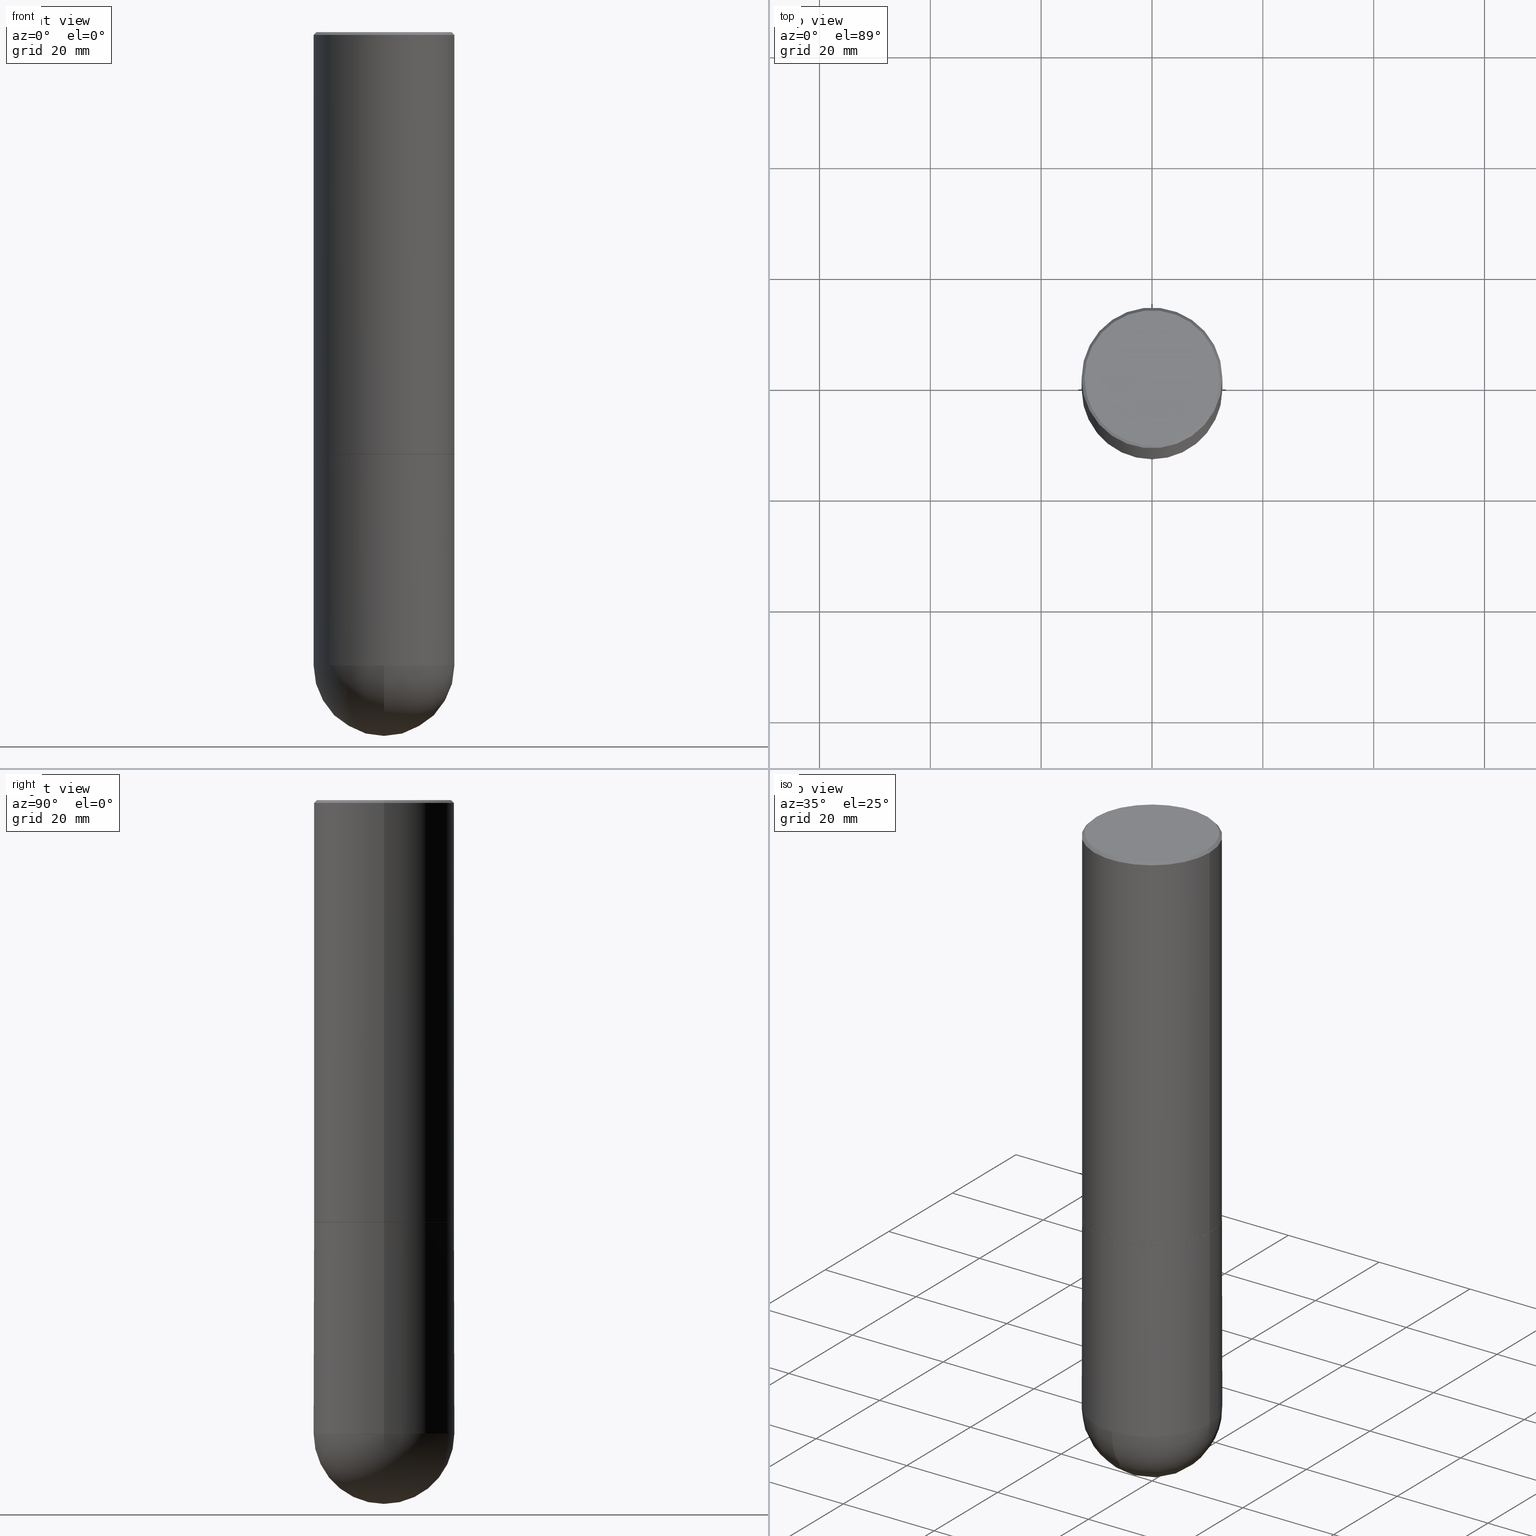
[diagram: canonical four-view strip — front | top / right | iso, engineering-drawing reading convention]
A machine part, canonical four-view strip (front | top / right | iso — engineering-drawing reading convention). The complete STEP part file that produces these views, byte-faithful:
ISO-10303-21;
HEADER;
FILE_DESCRIPTION (( 'STEP AP203' ),
    '1' );
FILE_NAME ('34989.STEP',
    '2024-02-21T18:46:01',
    ( '' ),
    ( '' ),
    'SwSTEP 2.0',
    'SolidWorks 2023',
    '' );
FILE_SCHEMA (( 'CONFIG_CONTROL_DESIGN' ));
ENDSEC;

DATA;
#1 = CYLINDRICAL_SURFACE ( 'NONE', #178, 0.5000000000000000000 ) ;
#2 = DIRECTION ( 'NONE',  ( 1.000000000000000000, -6.982962677686267499E-15, 4.876176775795935793E-29 ) ) ;
#3 = AXIS2_PLACEMENT_3D ( 'NONE', #346, #380, #406 ) ;
#4 = AXIS2_PLACEMENT_3D ( 'NONE', #295, #390, #399 ) ;
#5 = CARTESIAN_POINT ( 'NONE',  ( 3.491481338843242218E-15, 0.4999999999999841238, -4.500000000000001776 ) ) ;
#6 = CC_DESIGN_PERSON_AND_ORGANIZATION_ASSIGNMENT ( #180, #403, ( #360 ) ) ;
#7 = DIRECTION ( 'NONE',  ( 6.982962677686266711E-15, 1.000000000000000000, 0.000000000000000000 ) ) ;
#8 = DIRECTION ( 'NONE',  ( 1.000000000000000000, -6.982962677686265922E-15, 4.883557194083112340E-29 ) ) ;
#9 = CIRCLE ( 'NONE', #75, 0.5000000000000000000 ) ;
#10 = ADVANCED_FACE ( 'NONE', ( #158 ), #153, .F. ) ;
#11 = ORIENTED_EDGE ( 'NONE', *, *, #143, .T. ) ;
#12 = DIRECTION ( 'NONE',  ( -2.445468806185136877E-29, 3.491481338843145188E-15, 1.000000000000000000 ) ) ;
#13 = EDGE_LOOP ( 'NONE', ( #173, #225, #142, #15 ) ) ;
#14 = CARTESIAN_POINT ( 'NONE',  ( 4.890937612370299433E-31, -6.982962677686328587E-17, -0.02000000000000010797 ) ) ;
#15 = ORIENTED_EDGE ( 'NONE', *, *, #93, .F. ) ;
#16 = FACE_OUTER_BOUND ( 'NONE', #294, .T. ) ;
#17 = CONICAL_SURFACE ( 'NONE', #135, 0.5000000000000000000, 0.7853981633974459475 ) ;
#18 = CC_DESIGN_APPROVAL ( #329, ( #360 ) ) ;
#19 = EDGE_LOOP ( 'NONE', ( #247, #112, #84, #47 ) ) ;
#20 = VERTEX_POINT ( 'NONE', #243 ) ;
#21 = SHAPE_DEFINITION_REPRESENTATION ( #35, #96 ) ;
#22 = DIRECTION ( 'NONE',  ( -1.000000000000000000, 6.982962677686265922E-15, -4.876176775795935793E-29 ) ) ;
#23 = EDGE_CURVE ( 'NONE', #298, #177, #325, .T. ) ;
#24 = DIRECTION ( 'NONE',  ( -1.000000000000000000, 6.982962677686266711E-15, 0.000000000000000000 ) ) ;
#25 = VECTOR ( 'NONE', #66, 39.37007874015748143 ) ;
#26 = ADVANCED_FACE ( 'NONE', ( #65 ), #310, .T. ) ;
#27 = CIRCLE ( 'NONE', #55, 0.4989999999999999991 ) ;
#28 = DATE_TIME_ROLE ( 'classification_date' ) ;
#29 = SECURITY_CLASSIFICATION_LEVEL ( 'unclassified' ) ;
#30 = CARTESIAN_POINT ( 'NONE',  ( -0.4989999999999999991, -6.923537310738314819E-15, -3.000000000000000444 ) ) ;
#31 = CARTESIAN_POINT ( 'NONE',  ( 3.351822085289410309E-15, 0.4800000000000003708, -1.857322823473978811E-15 ) ) ;
#32 = CONICAL_SURFACE ( 'NONE', #128, 0.4989999999999999991, 0.7853981633976873100 ) ;
#33 = CONICAL_SURFACE ( 'NONE', #314, 0.5000000000000000000, 0.7853981633974459475 ) ;
#34 = CARTESIAN_POINT ( 'NONE',  ( 1.067348984991922956E-28, -1.618584839293420562E-14, -4.500000000000000000 ) ) ;
#35 = PRODUCT_DEFINITION_SHAPE ( 'NONE', 'NONE',  #360 ) ;
#36 = CARTESIAN_POINT ( 'NONE',  ( 7.336406418555409790E-29, -1.047444401652943635E-14, -3.000000000000000444 ) ) ;
#37 = DIRECTION ( 'NONE',  ( 1.000000000000000000, -6.982962677686266711E-15, 0.000000000000000000 ) ) ;
#38 = EDGE_CURVE ( 'NONE', #151, #20, #412, .T. ) ;
#39 = AXIS2_PLACEMENT_3D ( 'NONE', #385, #42, #221 ) ;
#40 = AXIS2_PLACEMENT_3D ( 'NONE', #341, #308, #43 ) ;
#41 = LOCAL_TIME ( 13, 46, 1.000000000000000000, #276 ) ;
#42 = DIRECTION ( 'NONE',  ( -2.445468806185136597E-29, 3.491481338843145583E-15, 1.000000000000000000 ) ) ;
#43 = DIRECTION ( 'NONE',  ( 1.000000000000000000, -6.982962677686266711E-15, 0.000000000000000000 ) ) ;
#44 = DIRECTION ( 'NONE',  ( 1.000000000000000000, 0.000000000000000000, 0.000000000000000000 ) ) ;
#45 = PERSON_AND_ORGANIZATION ( #350, #349 ) ;
#46 = LOCAL_TIME ( 13, 46, 1.000000000000000000, #100 ) ;
#47 = ORIENTED_EDGE ( 'NONE', *, *, #265, .F. ) ;
#48 = ORIENTED_EDGE ( 'NONE', *, *, #241, .F. ) ;
#49 = VERTEX_POINT ( 'NONE', #30 ) ;
#50 = ADVANCED_FACE ( 'NONE', ( #409 ), #32, .T. ) ;
#51 = DIRECTION ( 'NONE',  ( -0.7071067811865459074, 2.468850131082239706E-15, -0.7071067811865492381 ) ) ;
#52 = ORIENTED_EDGE ( 'NONE', *, *, #146, .T. ) ;
#53 = ADVANCED_FACE ( 'NONE', ( #130 ), #339, .T. ) ;
#54 = CLOSED_SHELL ( 'NONE', ( #215, #311, #271, #77, #126, #50, #72, #10 ) ) ;
#55 = AXIS2_PLACEMENT_3D ( 'NONE', #322, #284, #166 ) ;
#56 = ORIENTED_EDGE ( 'NONE', *, *, #348, .T. ) ;
#57 = CALENDAR_DATE ( 2024, 21, 2 ) ;
#58 = APPROVAL_STATUS ( 'not_yet_approved' ) ;
#59 = CC_DESIGN_PERSON_AND_ORGANIZATION_ASSIGNMENT ( #306, #94, ( #272 ) ) ;
#60 = DIRECTION ( 'NONE',  ( 2.445468806185136597E-29, -3.491481338843145583E-15, -1.000000000000000000 ) ) ;
#61 = APPROVAL_ROLE ( '' ) ;
#62 = VECTOR ( 'NONE', #210, 39.37007874015748143 ) ;
#63 = APPROVAL_STATUS ( 'not_yet_approved' ) ;
#64 = FACE_OUTER_BOUND ( 'NONE', #334, .T. ) ;
#65 = FACE_OUTER_BOUND ( 'NONE', #19, .T. ) ;
#66 = DIRECTION ( 'NONE',  ( -2.445468806185136877E-29, 3.491481338843145188E-15, 1.000000000000000000 ) ) ;
#67 = CIRCLE ( 'NONE', #98, 0.5000000000000002220 ) ;
#68 = LOCAL_TIME ( 13, 46, 1.000000000000000000, #244 ) ;
#69 = CARTESIAN_POINT ( 'NONE',  ( 7.333960949749226429E-29, -1.047095253519059492E-14, -2.999000000000000554 ) ) ;
#70 = EDGE_CURVE ( 'NONE', #20, #152, #313, .T. ) ;
#71 = CARTESIAN_POINT ( 'NONE',  ( 0.5000000000000002220, -1.396243387403372986E-14, -2.999000000000000554 ) ) ;
#72 = ADVANCED_FACE ( 'NONE', ( #64 ), #305, .F. ) ;
#73 = CARTESIAN_POINT ( 'NONE',  ( 0.5000000000000000000, -1.658453635950493077E-14, -4.500000000000000000 ) ) ;
#74 = AXIS2_PLACEMENT_3D ( 'NONE', #224, #103, #2 ) ;
#75 = AXIS2_PLACEMENT_3D ( 'NONE', #352, #253, #254 ) ;
#76 = FACE_OUTER_BOUND ( 'NONE', #278, .T. ) ;
#77 = ADVANCED_FACE ( 'NONE', ( #101 ), #17, .T. ) ;
#78 = DIRECTION ( 'NONE',  ( 1.000000000000000000, -6.982962677686266711E-15, 0.000000000000000000 ) ) ;
#79 = DIRECTION ( 'NONE',  ( -2.445468806185136597E-29, 3.491481338843145583E-15, 1.000000000000000000 ) ) ;
#80 = VERTEX_POINT ( 'NONE', #154 ) ;
#81 = CARTESIAN_POINT ( 'NONE',  ( -3.552713678800393250E-15, -0.5000000000000160982, -4.499999999999998224 ) ) ;
#82 = AXIS2_PLACEMENT_3D ( 'NONE', #216, #193, #188 ) ;
#83 = EDGE_CURVE ( 'NONE', #266, #296, #236, .T. ) ;
#84 = ORIENTED_EDGE ( 'NONE', *, *, #407, .F. ) ;
#85 = ORIENTED_EDGE ( 'NONE', *, *, #146, .F. ) ;
#86 = EDGE_CURVE ( 'NONE', #49, #151, #102, .T. ) ;
#87 = EDGE_LOOP ( 'NONE', ( #114, #202, #195, #362, #358 ) ) ;
#88 = FACE_OUTER_BOUND ( 'NONE', #226, .T. ) ;
#89 = ORIENTED_EDGE ( 'NONE', *, *, #345, .T. ) ;
#90 = APPROVAL_STATUS ( 'not_yet_approved' ) ;
#91 = AXIS2_PLACEMENT_3D ( 'NONE', #269, #246, #213 ) ;
#92 = ORIENTED_EDGE ( 'NONE', *, *, #387, .T. ) ;
#93 = EDGE_CURVE ( 'NONE', #80, #270, #373, .T. ) ;
#94 = PERSON_AND_ORGANIZATION_ROLE ( 'design_supplier' ) ;
#95 = DIRECTION ( 'NONE',  ( 1.000000000000000000, -6.982962677686265922E-15, 4.876176775795935793E-29 ) ) ;
#96 = ADVANCED_BREP_SHAPE_REPRESENTATION ( '34989', ( #108, #230, #104 ), #369 ) ;
#97 = CARTESIAN_POINT ( 'NONE',  ( 0.4989999999999999991, -1.395894239269488369E-14, -3.000000000000000444 ) ) ;
#98 = AXIS2_PLACEMENT_3D ( 'NONE', #34, #8, #7 ) ;
#99 = CONICAL_SURFACE ( 'NONE', #361, 0.4989999999999999991, 0.7853981633976873100 ) ;
#100 = COORDINATED_UNIVERSAL_TIME_OFFSET ( 5, 0, .BEHIND. ) ;
#101 = FACE_OUTER_BOUND ( 'NONE', #268, .T. ) ;
#102 = LINE ( 'NONE', #159, #182 ) ;
#103 = DIRECTION ( 'NONE',  ( -2.445468806185136597E-29, 3.491481338843145583E-15, 1.000000000000000000 ) ) ;
#104 = AXIS2_PLACEMENT_3D ( 'NONE', #393, #359, #44 ) ;
#105 = EDGE_CURVE ( 'NONE', #296, #179, #191, .T. ) ;
#106 = CYLINDRICAL_SURFACE ( 'NONE', #129, 0.5000000000000000000 ) ;
#107 = DIRECTION ( 'NONE',  ( 0.7071067811865459074, -7.319954787623251312E-15, -0.7071067811865492381 ) ) ;
#108 = MANIFOLD_SOLID_BREP ( 'Body-Move/Copy2[1]', #212 ) ;
#109 = CYLINDRICAL_SURFACE ( 'NONE', #74, 0.5000000000000001110 ) ;
#110 = CARTESIAN_POINT ( 'NONE',  ( 0.5000000000000000000, -3.500078625662629079E-15, -0.02000000000000010797 ) ) ;
#111 =( NAMED_UNIT ( * ) PLANE_ANGLE_UNIT ( ) SI_UNIT ( $, .RADIAN. ) );
#112 = ORIENTED_EDGE ( 'NONE', *, *, #83, .T. ) ;
#113 = EDGE_CURVE ( 'NONE', #177, #298, #262, .T. ) ;
#114 = ORIENTED_EDGE ( 'NONE', *, *, #192, .F. ) ;
#115 = CARTESIAN_POINT ( 'NONE',  ( -0.5000000000000000000, 3.421651712066270057E-15, -0.02000000000000010797 ) ) ;
#116 = AXIS2_PLACEMENT_3D ( 'NONE', #139, #134, #37 ) ;
#117 = ORIENTED_EDGE ( 'NONE', *, *, #387, .F. ) ;
#118 = LINE ( 'NONE', #170, #342 ) ;
#119 = EDGE_LOOP ( 'NONE', ( #366, #391, #207, #175 ) ) ;
#120 = LENGTH_MEASURE_WITH_UNIT ( LENGTH_MEASURE( 0.02539999999999999897 ), #257 );
#121 = EDGE_LOOP ( 'NONE', ( #394, #124 ) ) ;
#122 = APPROVAL_ROLE ( '' ) ;
#123 = APPROVAL_DATE_TIME ( #336, #299 ) ;
#124 = ORIENTED_EDGE ( 'NONE', *, *, #23, .T. ) ;
#125 = PERSON_AND_ORGANIZATION_ROLE ( 'creator' ) ;
#126 = ADVANCED_FACE ( 'NONE', ( #316 ), #109, .T. ) ;
#127 = DIRECTION ( 'NONE',  ( 6.982962677686265922E-15, 1.000000000000000000, -3.278217592397114284E-15 ) ) ;
#128 = AXIS2_PLACEMENT_3D ( 'NONE', #186, #375, #239 ) ;
#129 = AXIS2_PLACEMENT_3D ( 'NONE', #356, #388, #219 ) ;
#130 = FACE_OUTER_BOUND ( 'NONE', #119, .T. ) ;
#131 = UNCERTAINTY_MEASURE_WITH_UNIT (LENGTH_MEASURE( 1.000000000000000082E-05 ), #228, 'distance_accuracy_value', 'NONE');
#132 = LINE ( 'NONE', #110, #293 ) ;
#133 = CC_DESIGN_PERSON_AND_ORGANIZATION_ASSIGNMENT ( #273, #125, ( #272 ) ) ;
#134 = DIRECTION ( 'NONE',  ( -2.445468806185136597E-29, 3.491481338843145583E-15, 1.000000000000000000 ) ) ;
#135 = AXIS2_PLACEMENT_3D ( 'NONE', #185, #60, #24 ) ;
#136 = AXIS2_PLACEMENT_3D ( 'NONE', #14, #176, #78 ) ;
#137 = CARTESIAN_POINT ( 'NONE',  ( 7.336406418555409790E-29, -1.047444401652943635E-14, -3.000000000000000444 ) ) ;
#138 = DIRECTION ( 'NONE',  ( 1.000000000000000000, -6.982962677686266711E-15, 4.876176775795935793E-29 ) ) ;
#139 = CARTESIAN_POINT ( 'NONE',  ( 7.336406418555409790E-29, -1.047444401652943635E-14, -3.000000000000000444 ) ) ;
#140 = AXIS2_PLACEMENT_3D ( 'NONE', #174, #79, #365 ) ;
#141 = DIRECTION ( 'NONE',  ( -1.000000000000000000, 6.982962677686265922E-15, -4.876176775795935793E-29 ) ) ;
#142 = ORIENTED_EDGE ( 'NONE', *, *, #171, .F. ) ;
#143 = EDGE_CURVE ( 'NONE', #179, #145, #376, .T. ) ;
#144 = CARTESIAN_POINT ( 'NONE',  ( 0.5000000000000000000, -1.396592535537257129E-14, -3.000000000000000444 ) ) ;
#145 = VERTEX_POINT ( 'NONE', #5 ) ;
#146 = EDGE_CURVE ( 'NONE', #298, #152, #132, .T. ) ;
#147 = ORIENTED_EDGE ( 'NONE', *, *, #222, .F. ) ;
#148 = AXIS2_PLACEMENT_3D ( 'NONE', #351, #353, #187 ) ;
#149 = CARTESIAN_POINT ( 'NONE',  ( 0.4800000000000003708, -3.396558832296484071E-15, -3.628235616585113699E-16 ) ) ;
#150 = CC_DESIGN_SECURITY_CLASSIFICATION ( #396, ( #272 ) ) ;
#151 = VERTEX_POINT ( 'NONE', #248 ) ;
#152 = VERTEX_POINT ( 'NONE', #160 ) ;
#153 = PLANE ( 'NONE',  #405 ) ;
#154 = CARTESIAN_POINT ( 'NONE',  ( 0.4989999999999999991, -1.395894239269488369E-14, -3.000000000000000444 ) ) ;
#155 = APPROVAL_PERSON_ORGANIZATION ( #378, #299, #61 ) ;
#156 = EDGE_CURVE ( 'NONE', #80, #49, #27, .T. ) ;
#157 = DATE_AND_TIME ( #367, #46 ) ;
#158 = FACE_OUTER_BOUND ( 'NONE', #121, .T. ) ;
#159 = CARTESIAN_POINT ( 'NONE',  ( -0.4989999999999999991, -6.928835765086536432E-15, -3.000000000000000444 ) ) ;
#160 = CARTESIAN_POINT ( 'NONE',  ( 0.5000000000000000000, -3.500078625662629079E-15, -0.02000000000000010797 ) ) ;
#161 = FACE_OUTER_BOUND ( 'NONE', #87, .T. ) ;
#162 = DIRECTION ( 'NONE',  ( -2.445468806185136597E-29, 3.491481338843145583E-15, 1.000000000000000000 ) ) ;
#163 = CIRCLE ( 'NONE', #136, 0.5000000000000000000 ) ;
#164 = DIRECTION ( 'NONE',  ( -2.445468806185136877E-29, 3.491481338843145188E-15, 1.000000000000000000 ) ) ;
#165 = CC_DESIGN_DATE_AND_TIME_ASSIGNMENT ( #157, #279, ( #360 ) ) ;
#166 = DIRECTION ( 'NONE',  ( 1.000000000000000000, -6.982962677686265133E-15, 0.000000000000000000 ) ) ;
#167 = APPLICATION_PROTOCOL_DEFINITION ( 'international standard', 'config_control_design', 1994, #398 ) ;
#168 = EDGE_LOOP ( 'NONE', ( #229, #327, #147, #337, #11 ) ) ;
#169 = LOCAL_TIME ( 13, 46, 1.000000000000000000, #238 ) ;
#170 = CARTESIAN_POINT ( 'NONE',  ( 0.5000000000000000000, -3.491481338843133355E-15, 2.438088387897967896E-29 ) ) ;
#171 = EDGE_CURVE ( 'NONE', #270, #151, #281, .T. ) ;
#172 = ORIENTED_EDGE ( 'NONE', *, *, #348, .F. ) ;
#173 = ORIENTED_EDGE ( 'NONE', *, *, #156, .T. ) ;
#174 = CARTESIAN_POINT ( 'NONE',  ( 7.336406418555409790E-29, -1.047444401652943635E-14, -3.000000000000000444 ) ) ;
#175 = ORIENTED_EDGE ( 'NONE', *, *, #105, .F. ) ;
#176 = DIRECTION ( 'NONE',  ( -2.445468806185136597E-29, 3.491481338843145583E-15, 1.000000000000000000 ) ) ;
#177 = VERTEX_POINT ( 'NONE', #386 ) ;
#178 = AXIS2_PLACEMENT_3D ( 'NONE', #286, #250, #138 ) ;
#179 = VERTEX_POINT ( 'NONE', #73 ) ;
#180 = PERSON_AND_ORGANIZATION ( #350, #349 ) ;
#181 = CALENDAR_DATE ( 2024, 21, 2 ) ;
#182 = VECTOR ( 'NONE', #242, 39.37007874015748143 ) ;
#183 = PRODUCT_RELATED_PRODUCT_CATEGORY ( 'detail', '', ( #307 ) ) ;
#184 = DATE_AND_TIME ( #181, #41 ) ;
#185 = CARTESIAN_POINT ( 'NONE',  ( 4.890937612370299433E-31, -6.982962677686328587E-17, -0.02000000000000010797 ) ) ;
#186 = CARTESIAN_POINT ( 'NONE',  ( 7.336406418555409790E-29, -1.047444401652943635E-14, -3.000000000000000444 ) ) ;
#187 = DIRECTION ( 'NONE',  ( 1.000000000000000000, -6.982962677686266711E-15, 0.000000000000000000 ) ) ;
#188 = DIRECTION ( 'NONE',  ( 1.000000000000000000, -6.982962677686267499E-15, 0.000000000000000000 ) ) ;
#189 = CARTESIAN_POINT ( 'NONE',  ( 4.890937612370299433E-31, -6.982962677686328587E-17, -0.02000000000000010797 ) ) ;
#190 = DIRECTION ( 'NONE',  ( 1.000000000000000000, -6.982962677686267499E-15, 0.000000000000000000 ) ) ;
#191 = CIRCLE ( 'NONE', #40, 0.5000000000000000000 ) ;
#192 = EDGE_CURVE ( 'NONE', #275, #204, #223, .T. ) ;
#193 = DIRECTION ( 'NONE',  ( -2.445468806185136597E-29, 3.491481338843145583E-15, 1.000000000000000000 ) ) ;
#194 = DIMENSIONAL_EXPONENTS ( 1.000000000000000000, 0.000000000000000000, 0.000000000000000000, 0.000000000000000000, 0.000000000000000000, 0.000000000000000000, 0.000000000000000000 ) ;
#195 = ORIENTED_EDGE ( 'NONE', *, *, #105, .T. ) ;
#196 = CARTESIAN_POINT ( 'NONE',  ( 1.100460962783311469E-28, -1.571166602479415690E-14, -4.500000000000000000 ) ) ;
#197 = CC_DESIGN_PERSON_AND_ORGANIZATION_ASSIGNMENT ( #267, #201, ( #307 ) ) ;
#198 = ORIENTED_EDGE ( 'NONE', *, *, #86, .F. ) ;
#199 = APPROVAL_PERSON_ORGANIZATION ( #338, #209, #340 ) ;
#200 = ORIENTED_EDGE ( 'NONE', *, *, #93, .T. ) ;
#201 = PERSON_AND_ORGANIZATION_ROLE ( 'design_owner' ) ;
#202 = ORIENTED_EDGE ( 'NONE', *, *, #407, .T. ) ;
#203 = DIRECTION ( 'NONE',  ( 1.000000000000000000, -6.982962677686266711E-15, 0.000000000000000000 ) ) ;
#204 = VERTEX_POINT ( 'NONE', #319 ) ;
#205 = AXIS2_PLACEMENT_3D ( 'NONE', #274, #214, #344 ) ;
#206 = COORDINATED_UNIVERSAL_TIME_OFFSET ( 5, 0, .BEHIND. ) ;
#207 = ORIENTED_EDGE ( 'NONE', *, *, #143, .F. ) ;
#208 = EDGE_CURVE ( 'NONE', #204, #402, #263, .T. ) ;
#209 = APPROVAL ( #90, 'UNSPECIFIED' ) ;
#210 = DIRECTION ( 'NONE',  ( 0.7071067811867165487, -2.468850131084027659E-15, 0.7071067811863784858 ) ) ;
#211 = CALENDAR_DATE ( 2024, 21, 2 ) ;
#212 = CLOSED_SHELL ( 'NONE', ( #232, #26, #53, #317, #252 ) ) ;
#213 = DIRECTION ( 'NONE',  ( 6.982962677686265922E-15, 1.000000000000000000, -3.278217592397114284E-15 ) ) ;
#214 = DIRECTION ( 'NONE',  ( -2.445468806185136597E-29, 3.491481338843145583E-15, 1.000000000000000000 ) ) ;
#215 = ADVANCED_FACE ( 'NONE', ( #289 ), #99, .T. ) ;
#216 = CARTESIAN_POINT ( 'NONE',  ( 7.333960949749226429E-29, -1.047095253519059492E-14, -2.999000000000000554 ) ) ;
#217 = AXIS2_PLACEMENT_3D ( 'NONE', #379, #282, #127 ) ;
#218 = VECTOR ( 'NONE', #333, 39.37007874015748143 ) ;
#219 = DIRECTION ( 'NONE',  ( 1.000000000000000000, -6.982962677686266711E-15, 4.876176775795935793E-29 ) ) ;
#220 = EDGE_CURVE ( 'NONE', #266, #145, #67, .T. ) ;
#221 = DIRECTION ( 'NONE',  ( 1.000000000000000000, -6.982962677686266711E-15, 4.878011538933546479E-29 ) ) ;
#222 = EDGE_CURVE ( 'NONE', #402, #204, #377, .T. ) ;
#223 = LINE ( 'NONE', #381, #321 ) ;
#224 = CARTESIAN_POINT ( 'NONE',  ( 0.000000000000000000, 0.000000000000000000, 0.000000000000000000 ) ) ;
#225 = ORIENTED_EDGE ( 'NONE', *, *, #86, .T. ) ;
#226 = EDGE_LOOP ( 'NONE', ( #400, #258 ) ) ;
#227 = APPROVAL_PERSON_ORGANIZATION ( #45, #329, #122 ) ;
#228 =( CONVERSION_BASED_UNIT ( 'INCH', #120 ) LENGTH_UNIT ( ) NAMED_UNIT ( #194 ) );
#229 = ORIENTED_EDGE ( 'NONE', *, *, #265, .T. ) ;
#230 = MANIFOLD_SOLID_BREP ( 'Body-Move/Copy2[2]', #54 ) ;
#231 = CARTESIAN_POINT ( 'NONE',  ( 0.5000000000000001110, -3.491481338843134539E-15, 2.438088387897968457E-29 ) ) ;
#232 = ADVANCED_FACE ( 'NONE', ( #255 ), #1, .T. ) ;
#233 = ORIENTED_EDGE ( 'NONE', *, *, #171, .T. ) ;
#234 = CARTESIAN_POINT ( 'NONE',  ( 3.491481338843206325E-15, 0.4999999999999895639, -3.000000000000001776 ) ) ;
#235 = ORIENTED_EDGE ( 'NONE', *, *, #23, .F. ) ;
#236 = CIRCLE ( 'NONE', #3, 0.5000000000000002220 ) ;
#237 = CIRCLE ( 'NONE', #301, 0.5000000000000000000 ) ;
#238 = COORDINATED_UNIVERSAL_TIME_OFFSET ( 5, 0, .BEHIND. ) ;
#239 = DIRECTION ( 'NONE',  ( 1.000000000000000000, -6.982962677686265133E-15, 0.000000000000000000 ) ) ;
#240 = ORIENTED_EDGE ( 'NONE', *, *, #70, .T. ) ;
#241 = EDGE_CURVE ( 'NONE', #151, #270, #245, .T. ) ;
#242 = DIRECTION ( 'NONE',  ( -0.7071067811867165487, 7.493145998870964739E-15, 0.7071067811863784858 ) ) ;
#243 = CARTESIAN_POINT ( 'NONE',  ( -0.5000000000000000000, 3.421651712066270057E-15, -0.02000000000000010797 ) ) ;
#244 = COORDINATED_UNIVERSAL_TIME_OFFSET ( 5, 0, .BEHIND. ) ;
#245 = CIRCLE ( 'NONE', #82, 0.5000000000000002220 ) ;
#246 = DIRECTION ( 'NONE',  ( -1.000000000000000000, 6.982962677686265922E-15, -4.883557194083113462E-29 ) ) ;
#247 = ORIENTED_EDGE ( 'NONE', *, *, #220, .F. ) ;
#248 = CARTESIAN_POINT ( 'NONE',  ( -0.5000000000000002220, -1.717677402183225026E-15, -2.999000000000000554 ) ) ;
#249 = DESIGN_CONTEXT ( 'detailed design', #291, 'design' ) ;
#250 = DIRECTION ( 'NONE',  ( -2.445468806185136597E-29, 3.491481338843145583E-15, 1.000000000000000000 ) ) ;
#251 = AXIS2_PLACEMENT_3D ( 'NONE', #280, #312, #95 ) ;
#252 = ADVANCED_FACE ( 'NONE', ( #161 ), #106, .T. ) ;
#253 = DIRECTION ( 'NONE',  ( -2.445468806185136597E-29, 3.491481338843145583E-15, 1.000000000000000000 ) ) ;
#254 = DIRECTION ( 'NONE',  ( 1.000000000000000000, -6.982962677686266711E-15, 0.000000000000000000 ) ) ;
#255 = FACE_OUTER_BOUND ( 'NONE', #168, .T. ) ;
#256 = CIRCLE ( 'NONE', #140, 0.4989999999999999991 ) ;
#257 =( LENGTH_UNIT ( ) NAMED_UNIT ( * ) SI_UNIT ( $, .METRE. ) );
#258 = ORIENTED_EDGE ( 'NONE', *, *, #208, .T. ) ;
#259 = ORIENTED_EDGE ( 'NONE', *, *, #156, .F. ) ;
#260 =( NAMED_UNIT ( * ) SI_UNIT ( $, .STERADIAN. ) SOLID_ANGLE_UNIT ( ) );
#261 = ORIENTED_EDGE ( 'NONE', *, *, #38, .F. ) ;
#262 = CIRCLE ( 'NONE', #39, 0.4800000000000003708 ) ;
#263 = CIRCLE ( 'NONE', #389, 0.5000000000000000000 ) ;
#264 = DIRECTION ( 'NONE',  ( -1.000000000000000000, 6.982962677686266711E-15, 0.000000000000000000 ) ) ;
#265 = EDGE_CURVE ( 'NONE', #145, #275, #9, .T. ) ;
#266 = VERTEX_POINT ( 'NONE', #354 ) ;
#267 = PERSON_AND_ORGANIZATION ( #350, #349 ) ;
#268 = EDGE_LOOP ( 'NONE', ( #85, #323, #92, #240 ) ) ;
#269 = CARTESIAN_POINT ( 'NONE',  ( 1.067348984991922956E-28, -1.618584839293420562E-14, -4.500000000000000000 ) ) ;
#270 = VERTEX_POINT ( 'NONE', #71 ) ;
#271 = ADVANCED_FACE ( 'NONE', ( #76 ), #33, .T. ) ;
#272 = PRODUCT_DEFINITION_FORMATION_WITH_SPECIFIED_SOURCE ( 'ANY', '', #307, .NOT_KNOWN. ) ;
#273 = PERSON_AND_ORGANIZATION ( #350, #349 ) ;
#274 = CARTESIAN_POINT ( 'NONE',  ( 8.872737021849368446E-45, -1.266791694823380303E-30, -3.628235616585349371E-16 ) ) ;
#275 = VERTEX_POINT ( 'NONE', #331 ) ;
#276 = COORDINATED_UNIVERSAL_TIME_OFFSET ( 5, 0, .BEHIND. ) ;
#277 = DIRECTION ( 'NONE',  ( 2.438088387897960049E-29, -3.491481338843145188E-15, -1.000000000000000000 ) ) ;
#278 = EDGE_LOOP ( 'NONE', ( #235, #52, #332, #117 ) ) ;
#279 = DATE_TIME_ROLE ( 'creation_date' ) ;
#280 = CARTESIAN_POINT ( 'NONE',  ( 7.336406418555409790E-29, -1.047444401652943635E-14, -3.000000000000000444 ) ) ;
#281 = CIRCLE ( 'NONE', #320, 0.5000000000000002220 ) ;
#282 = DIRECTION ( 'NONE',  ( -1.000000000000000000, 6.982962677686265922E-15, -4.883557194083113462E-29 ) ) ;
#283 = DIRECTION ( 'NONE',  ( 1.000000000000000000, -6.982962677686266711E-15, 0.000000000000000000 ) ) ;
#284 = DIRECTION ( 'NONE',  ( -2.445468806185136597E-29, 3.491481338843145583E-15, 1.000000000000000000 ) ) ;
#285 = CC_DESIGN_PERSON_AND_ORGANIZATION_ASSIGNMENT ( #370, #410, ( #396 ) ) ;
#286 = CARTESIAN_POINT ( 'NONE',  ( 0.000000000000000000, 0.000000000000000000, 0.000000000000000000 ) ) ;
#287 = AXIS2_PLACEMENT_3D ( 'NONE', #234, #395, #141 ) ;
#288 = DIRECTION ( 'NONE',  ( -2.445468806185136597E-29, 3.491481338843145583E-15, 1.000000000000000000 ) ) ;
#289 = FACE_OUTER_BOUND ( 'NONE', #13, .T. ) ;
#290 = MECHANICAL_CONTEXT ( 'NONE', #398, 'mechanical' ) ;
#291 = APPLICATION_CONTEXT ( 'configuration controlled 3d designs of mechanical parts and assemblies' ) ;
#292 = AXIS2_PLACEMENT_3D ( 'NONE', #371, #411, #404 ) ;
#293 = VECTOR ( 'NONE', #107, 39.37007874015748143 ) ;
#294 = EDGE_LOOP ( 'NONE', ( #233, #368, #397, #330 ) ) ;
#295 = CARTESIAN_POINT ( 'NONE',  ( 0.000000000000000000, 0.000000000000000000, 0.000000000000000000 ) ) ;
#296 = VERTEX_POINT ( 'NONE', #81 ) ;
#297 = PLANE ( 'NONE',  #287 ) ;
#298 = VERTEX_POINT ( 'NONE', #149 ) ;
#299 = APPROVAL ( #58, 'UNSPECIFIED' ) ;
#300 = EDGE_LOOP ( 'NONE', ( #198, #56, #200, #48 ) ) ;
#301 = AXIS2_PLACEMENT_3D ( 'NONE', #196, #302, #203 ) ;
#302 = DIRECTION ( 'NONE',  ( -2.445468806185136597E-29, 3.491481338843145583E-15, 1.000000000000000000 ) ) ;
#303 = EDGE_LOOP ( 'NONE', ( #261, #364, #89, #363 ) ) ;
#304 = DATE_AND_TIME ( #57, #68 ) ;
#305 = PLANE ( 'NONE',  #251 ) ;
#306 = PERSON_AND_ORGANIZATION ( #350, #349 ) ;
#307 = PRODUCT ( '34989', '34989', '', ( #290 ) ) ;
#308 = DIRECTION ( 'NONE',  ( -2.445468806185136597E-29, 3.491481338843145583E-15, 1.000000000000000000 ) ) ;
#309 = APPROVAL_DATE_TIME ( #372, #329 ) ;
#310 = SPHERICAL_SURFACE ( 'NONE', #217, 0.5000000000000002220 ) ;
#311 = ADVANCED_FACE ( 'NONE', ( #16 ), #401, .T. ) ;
#312 = DIRECTION ( 'NONE',  ( -2.438088387897960049E-29, 3.491481338843145188E-15, 1.000000000000000000 ) ) ;
#313 = CIRCLE ( 'NONE', #292, 0.5000000000000000000 ) ;
#314 = AXIS2_PLACEMENT_3D ( 'NONE', #189, #318, #264 ) ;
#315 = DIRECTION ( 'NONE',  ( -2.445468806185136597E-29, 3.491481338843145583E-15, 1.000000000000000000 ) ) ;
#316 = FACE_OUTER_BOUND ( 'NONE', #303, .T. ) ;
#317 = ADVANCED_FACE ( 'NONE', ( #88 ), #297, .F. ) ;
#318 = DIRECTION ( 'NONE',  ( 2.445468806185136597E-29, -3.491481338843145583E-15, -1.000000000000000000 ) ) ;
#319 = CARTESIAN_POINT ( 'NONE',  ( -0.5000000000000000000, -9.540341341861294907E-15, -3.000000000000000444 ) ) ;
#320 = AXIS2_PLACEMENT_3D ( 'NONE', #69, #162, #190 ) ;
#321 = VECTOR ( 'NONE', #164, 39.37007874015748143 ) ;
#322 = CARTESIAN_POINT ( 'NONE',  ( 7.336406418555409790E-29, -1.047444401652943635E-14, -3.000000000000000444 ) ) ;
#323 = ORIENTED_EDGE ( 'NONE', *, *, #113, .F. ) ;
#324 = APPLICATION_PROTOCOL_DEFINITION ( 'international standard', 'config_control_design', 1994, #291 ) ;
#325 = CIRCLE ( 'NONE', #205, 0.4800000000000003708 ) ;
#326 = LOCAL_TIME ( 13, 46, 1.000000000000000000, #206 ) ;
#327 = ORIENTED_EDGE ( 'NONE', *, *, #192, .T. ) ;
#328 = LINE ( 'NONE', #231, #218 ) ;
#329 = APPROVAL ( #63, 'UNSPECIFIED' ) ;
#330 = ORIENTED_EDGE ( 'NONE', *, *, #345, .F. ) ;
#331 = CARTESIAN_POINT ( 'NONE',  ( -0.5000000000000000000, -9.540341341861298062E-15, -4.500000000000000000 ) ) ;
#332 = ORIENTED_EDGE ( 'NONE', *, *, #374, .T. ) ;
#333 = DIRECTION ( 'NONE',  ( -2.445468806185136877E-29, 3.491481338843145188E-15, 1.000000000000000000 ) ) ;
#334 = EDGE_LOOP ( 'NONE', ( #259, #172 ) ) ;
#335 = EDGE_CURVE ( 'NONE', #179, #402, #118, .T. ) ;
#336 = DATE_AND_TIME ( #343, #326 ) ;
#337 = ORIENTED_EDGE ( 'NONE', *, *, #335, .F. ) ;
#338 = PERSON_AND_ORGANIZATION ( #350, #349 ) ;
#339 = SPHERICAL_SURFACE ( 'NONE', #91, 0.5000000000000002220 ) ;
#340 = APPROVAL_ROLE ( '' ) ;
#341 = CARTESIAN_POINT ( 'NONE',  ( 1.100460962783311469E-28, -1.571166602479415690E-14, -4.500000000000000000 ) ) ;
#342 = VECTOR ( 'NONE', #12, 39.37007874015748143 ) ;
#343 = CALENDAR_DATE ( 2024, 21, 2 ) ;
#344 = DIRECTION ( 'NONE',  ( 1.000000000000000000, -6.982962677686266711E-15, 4.878011538933546479E-29 ) ) ;
#345 = EDGE_CURVE ( 'NONE', #270, #152, #328, .T. ) ;
#346 = CARTESIAN_POINT ( 'NONE',  ( 1.067348984991922956E-28, -1.618584839293420562E-14, -4.500000000000000000 ) ) ;
#347 = CARTESIAN_POINT ( 'NONE',  ( -0.5000000000000001110, 3.552713678800501718E-15, -2.459467545127453732E-29 ) ) ;
#348 = EDGE_CURVE ( 'NONE', #49, #80, #256, .T. ) ;
#349 = ORGANIZATION ( 'UNSPECIFIED', 'UNSPECIFIED', '' ) ;
#350 = PERSON ( 'UNSPECIFIED', 'UNSPECIFIED', 'UNSPECIFIED', ('UNSPECIFIED'), ('UNSPECIFIED'), ('UNSPECIFIED') ) ;
#351 = CARTESIAN_POINT ( 'NONE',  ( 1.100460962783311469E-28, -1.571166602479415690E-14, -4.500000000000000000 ) ) ;
#352 = CARTESIAN_POINT ( 'NONE',  ( 1.100460962783311469E-28, -1.571166602479415690E-14, -4.500000000000000000 ) ) ;
#353 = DIRECTION ( 'NONE',  ( -2.445468806185136597E-29, 3.491481338843145583E-15, 1.000000000000000000 ) ) ;
#354 = CARTESIAN_POINT ( 'NONE',  ( 1.191760341024128201E-28, -1.790097289237709482E-14, -5.000000000000000000 ) ) ;
#355 = VECTOR ( 'NONE', #51, 39.37007874015748143 ) ;
#356 = CARTESIAN_POINT ( 'NONE',  ( 0.000000000000000000, 0.000000000000000000, 0.000000000000000000 ) ) ;
#357 = LINE ( 'NONE', #115, #355 ) ;
#358 = ORIENTED_EDGE ( 'NONE', *, *, #208, .F. ) ;
#359 = DIRECTION ( 'NONE',  ( 0.000000000000000000, 0.000000000000000000, 1.000000000000000000 ) ) ;
#360 = PRODUCT_DEFINITION ( 'UNKNOWN', '', #272, #249 ) ;
#361 = AXIS2_PLACEMENT_3D ( 'NONE', #36, #315, #383 ) ;
#362 = ORIENTED_EDGE ( 'NONE', *, *, #335, .T. ) ;
#363 = ORIENTED_EDGE ( 'NONE', *, *, #70, .F. ) ;
#364 = ORIENTED_EDGE ( 'NONE', *, *, #241, .T. ) ;
#365 = DIRECTION ( 'NONE',  ( 1.000000000000000000, -6.982962677686265133E-15, 0.000000000000000000 ) ) ;
#366 = ORIENTED_EDGE ( 'NONE', *, *, #83, .F. ) ;
#367 = CALENDAR_DATE ( 2024, 21, 2 ) ;
#368 = ORIENTED_EDGE ( 'NONE', *, *, #38, .T. ) ;
#369 =( GEOMETRIC_REPRESENTATION_CONTEXT ( 3 ) GLOBAL_UNCERTAINTY_ASSIGNED_CONTEXT ( ( #131 ) ) GLOBAL_UNIT_ASSIGNED_CONTEXT ( ( #228, #111, #260 ) ) REPRESENTATION_CONTEXT ( 'NONE', 'WORKASPACE' ) );
#370 = PERSON_AND_ORGANIZATION ( #350, #349 ) ;
#371 = CARTESIAN_POINT ( 'NONE',  ( 4.890937612370299433E-31, -6.982962677686328587E-17, -0.02000000000000010797 ) ) ;
#372 = DATE_AND_TIME ( #211, #169 ) ;
#373 = LINE ( 'NONE', #97, #62 ) ;
#374 = EDGE_CURVE ( 'NONE', #152, #20, #163, .T. ) ;
#375 = DIRECTION ( 'NONE',  ( -2.445468806185136597E-29, 3.491481338843145583E-15, 1.000000000000000000 ) ) ;
#376 = CIRCLE ( 'NONE', #148, 0.5000000000000000000 ) ;
#377 = CIRCLE ( 'NONE', #116, 0.5000000000000000000 ) ;
#378 = PERSON_AND_ORGANIZATION ( #350, #349 ) ;
#379 = CARTESIAN_POINT ( 'NONE',  ( 1.067348984991922956E-28, -1.618584839293420562E-14, -4.500000000000000000 ) ) ;
#380 = DIRECTION ( 'NONE',  ( -1.000000000000000000, 7.105427357601001070E-15, -4.926315508542082329E-29 ) ) ;
#381 = CARTESIAN_POINT ( 'NONE',  ( -0.5000000000000000000, 3.552713678800500929E-15, -2.459467545127452891E-29 ) ) ;
#382 = CC_DESIGN_APPROVAL ( #299, ( #272 ) ) ;
#383 = DIRECTION ( 'NONE',  ( 1.000000000000000000, -6.982962677686265133E-15, 0.000000000000000000 ) ) ;
#384 = CC_DESIGN_APPROVAL ( #209, ( #396 ) ) ;
#385 = CARTESIAN_POINT ( 'NONE',  ( 8.872737021849368446E-45, -1.266791694823380303E-30, -3.628235616585349371E-16 ) ) ;
#386 = CARTESIAN_POINT ( 'NONE',  ( -0.4800000000000003708, 3.386736898677839197E-15, -3.628235616585585043E-16 ) ) ;
#387 = EDGE_CURVE ( 'NONE', #177, #20, #357, .T. ) ;
#388 = DIRECTION ( 'NONE',  ( -2.445468806185136597E-29, 3.491481338843145583E-15, 1.000000000000000000 ) ) ;
#389 = AXIS2_PLACEMENT_3D ( 'NONE', #137, #288, #283 ) ;
#390 = DIRECTION ( 'NONE',  ( -2.445468806185136597E-29, 3.491481338843145583E-15, 1.000000000000000000 ) ) ;
#391 = ORIENTED_EDGE ( 'NONE', *, *, #220, .T. ) ;
#392 = CC_DESIGN_DATE_AND_TIME_ASSIGNMENT ( #184, #28, ( #396 ) ) ;
#393 = CARTESIAN_POINT ( 'NONE',  ( 0.000000000000000000, 0.000000000000000000, 0.000000000000000000 ) ) ;
#394 = ORIENTED_EDGE ( 'NONE', *, *, #113, .T. ) ;
#395 = DIRECTION ( 'NONE',  ( 2.438088387897960049E-29, -3.491481338843145188E-15, -1.000000000000000000 ) ) ;
#396 = SECURITY_CLASSIFICATION ( '', '', #29 ) ;
#397 = ORIENTED_EDGE ( 'NONE', *, *, #374, .F. ) ;
#398 = APPLICATION_CONTEXT ( 'configuration controlled 3d designs of mechanical parts and assemblies' ) ;
#399 = DIRECTION ( 'NONE',  ( 1.000000000000000000, -6.982962677686267499E-15, 4.876176775795935793E-29 ) ) ;
#400 = ORIENTED_EDGE ( 'NONE', *, *, #222, .T. ) ;
#401 = CYLINDRICAL_SURFACE ( 'NONE', #4, 0.5000000000000001110 ) ;
#402 = VERTEX_POINT ( 'NONE', #144 ) ;
#403 = PERSON_AND_ORGANIZATION_ROLE ( 'creator' ) ;
#404 = DIRECTION ( 'NONE',  ( 1.000000000000000000, -6.982962677686266711E-15, 0.000000000000000000 ) ) ;
#405 = AXIS2_PLACEMENT_3D ( 'NONE', #31, #277, #22 ) ;
#406 = DIRECTION ( 'NONE',  ( -7.105427357601001859E-15, -1.000000000000000000, 0.000000000000000000 ) ) ;
#407 = EDGE_CURVE ( 'NONE', #275, #296, #237, .T. ) ;
#408 = APPROVAL_DATE_TIME ( #304, #209 ) ;
#409 = FACE_OUTER_BOUND ( 'NONE', #300, .T. ) ;
#410 = PERSON_AND_ORGANIZATION_ROLE ( 'classification_officer' ) ;
#411 = DIRECTION ( 'NONE',  ( -2.445468806185136597E-29, 3.491481338843145583E-15, 1.000000000000000000 ) ) ;
#412 = LINE ( 'NONE', #347, #25 ) ;
ENDSEC;
END-ISO-10303-21;
